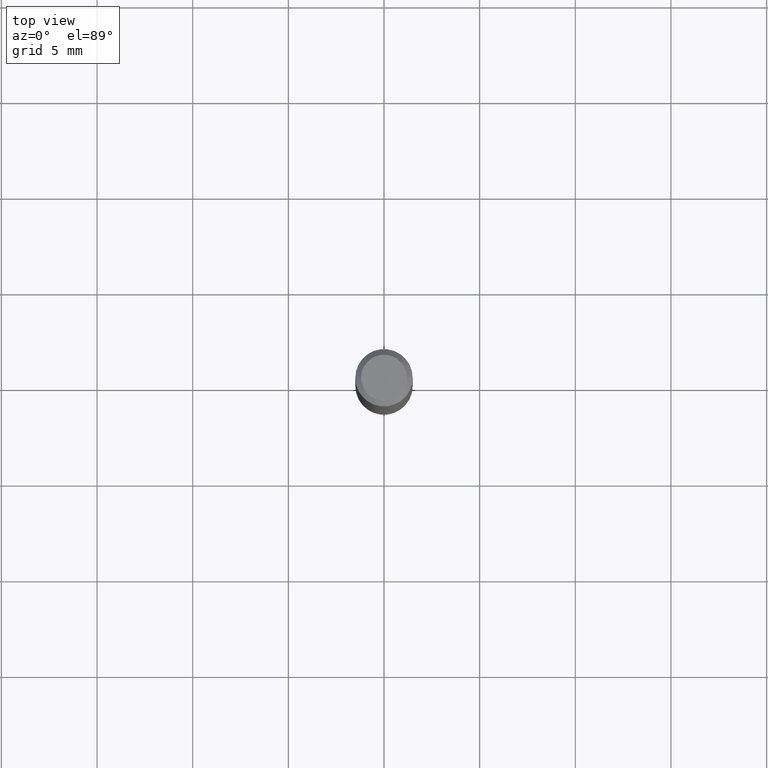
[diagram: clean part render]
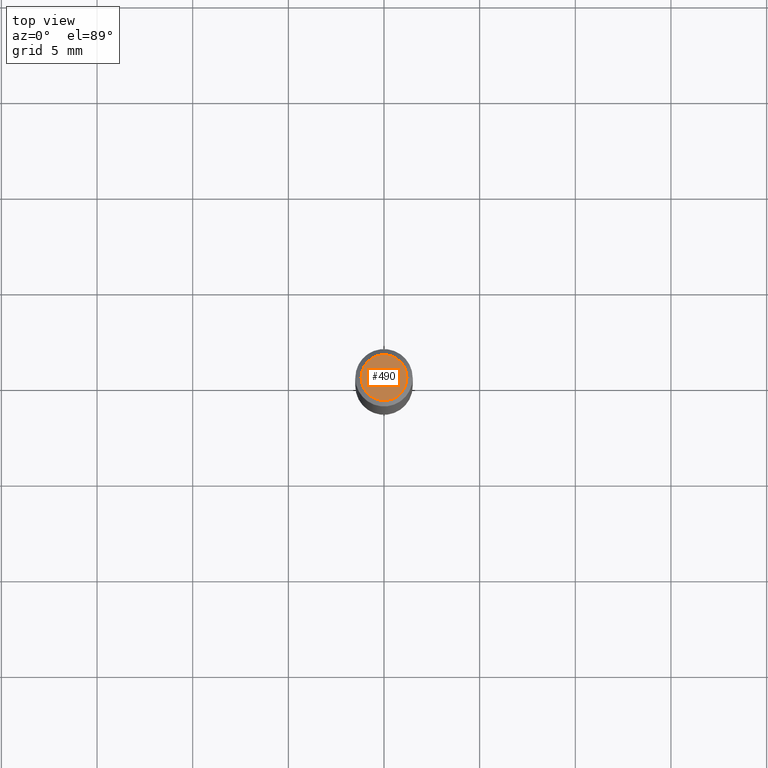
[diagram: same view with one face highlighted and labeled with its STEP entity id]
A machine part, top view. The second image highlights one B-rep face of the part: STEP entity #490.
In plain terms, the highlighted planar face has unit normal (0, -0, -1).
Its self-contained STEP definition (entity closure, byte-faithful):
#52 = ORIENTED_EDGE ( 'NONE', *, *, #366, .T. ) ;
#73 = DIRECTION ( 'NONE',  ( 2.438088387897960049E-29, -3.491481338843145188E-15, -1.000000000000000000 ) ) ;
#91 = DIRECTION ( 'NONE',  ( -2.445468806185136597E-29, 3.491481338843145583E-15, 1.000000000000000000 ) ) ;
#106 = FACE_OUTER_BOUND ( 'NONE', #303, .T. ) ;
#117 = CIRCLE ( 'NONE', #458, 0.04724000000000000421 ) ;
#151 = CARTESIAN_POINT ( 'NONE',  ( 4.132873053354867254E-48, -5.900647395337818946E-34, -1.690012582823346072E-19 ) ) ;
#167 = CARTESIAN_POINT ( 'NONE',  ( -0.04724000000000000421, 3.504923541997677355E-16, -3.380025165670481712E-19 ) ) ;
#179 = DIRECTION ( 'NONE',  ( -1.000000000000000000, 6.982962677686265922E-15, -4.876176775795935793E-29 ) ) ;
#183 = VERTEX_POINT ( 'NONE', #382 ) ;
#207 = CIRCLE ( 'NONE', #393, 0.04724000000000000421 ) ;
#208 = CARTESIAN_POINT ( 'NONE',  ( 8.265746106709734507E-48, -1.180129479067563789E-33, -3.380025165646692144E-19 ) ) ;
#268 = PLANE ( 'NONE',  #302 ) ;
#302 = AXIS2_PLACEMENT_3D ( 'NONE', #151, #73, #179 ) ;
#303 = EDGE_LOOP ( 'NONE', ( #52, #309 ) ) ;
#309 = ORIENTED_EDGE ( 'NONE', *, *, #332, .T. ) ;
#332 = EDGE_CURVE ( 'NONE', #183, #383, #117, .T. ) ;
#363 = DIRECTION ( 'NONE',  ( 1.000000000000000000, -6.982962677686266711E-15, 4.876185090822587894E-29 ) ) ;
#366 = EDGE_CURVE ( 'NONE', #383, #183, #207, .T. ) ;
#382 = CARTESIAN_POINT ( 'NONE',  ( 0.04724000000000000421, -3.852183633974369345E-16, -3.380025165621689721E-19 ) ) ;
#383 = VERTEX_POINT ( 'NONE', #167 ) ;
#393 = AXIS2_PLACEMENT_3D ( 'NONE', #208, #91, #363 ) ;
#403 = DIRECTION ( 'NONE',  ( -2.445468806185136597E-29, 3.491481338843145583E-15, 1.000000000000000000 ) ) ;
#438 = DIRECTION ( 'NONE',  ( 1.000000000000000000, -6.982962677686266711E-15, 4.876185090822587894E-29 ) ) ;
#458 = AXIS2_PLACEMENT_3D ( 'NONE', #473, #403, #438 ) ;
#473 = CARTESIAN_POINT ( 'NONE',  ( 8.265746106709734507E-48, -1.180129479067563789E-33, -3.380025165646692144E-19 ) ) ;
#490 = ADVANCED_FACE ( 'NONE', ( #106 ), #268, .F. ) ;